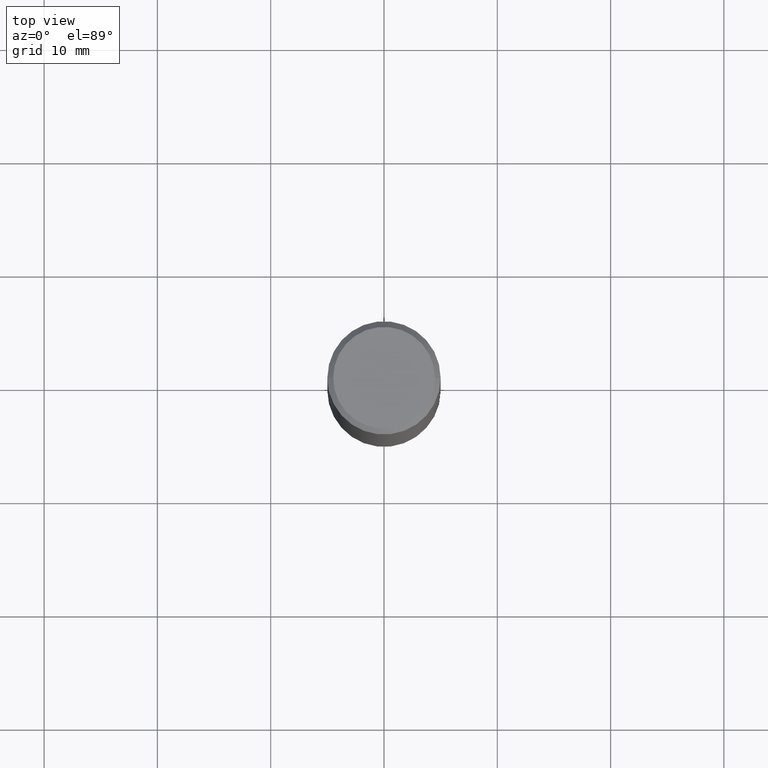
[diagram: clean part render]
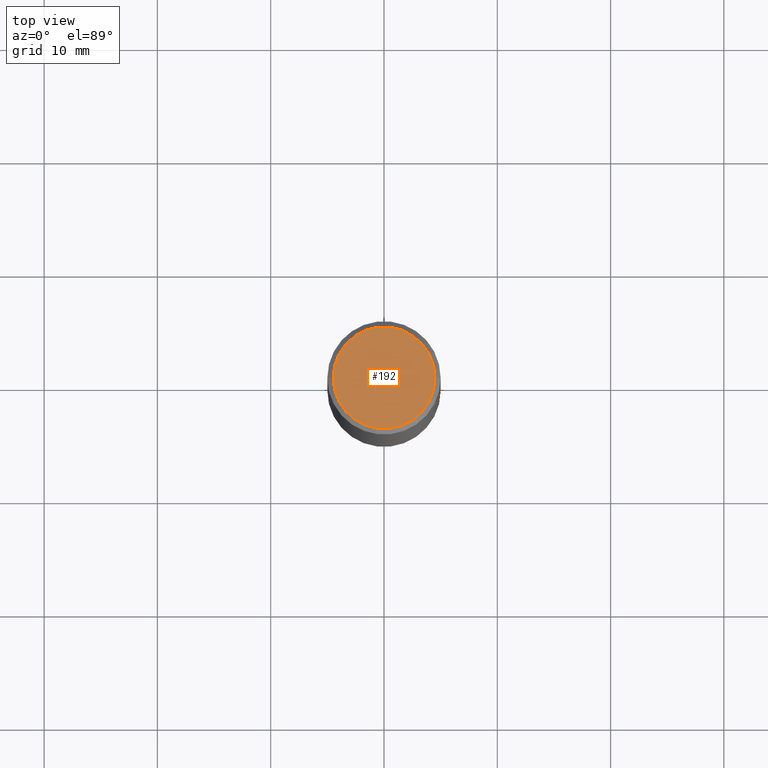
[diagram: same view with one face highlighted and labeled with its STEP entity id]
A machine part, top view. The second image highlights one B-rep face of the part: STEP entity #192.
In plain terms, the highlighted planar face has unit normal (0, -0, -1).
Its self-contained STEP definition (entity closure, byte-faithful):
#21 = ORIENTED_EDGE ( 'NONE', *, *, #236, .T. ) ;
#30 = DIRECTION ( 'NONE',  ( -1.000000000000000000, 6.982962677686265922E-15, -4.876176775795935793E-29 ) ) ;
#48 = CARTESIAN_POINT ( 'NONE',  ( 1.234936949548814617E-15, 0.1768499999999997851, -6.153342185293593634E-16 ) ) ;
#75 = DIRECTION ( 'NONE',  ( -2.445468806185136597E-29, 3.491481338843145583E-15, 1.000000000000000000 ) ) ;
#90 = ORIENTED_EDGE ( 'NONE', *, *, #136, .T. ) ;
#92 = VERTEX_POINT ( 'NONE', #169 ) ;
#97 = EDGE_LOOP ( 'NONE', ( #90, #21 ) ) ;
#105 = CIRCLE ( 'NONE', #297, 0.1768499999999997851 ) ;
#106 = DIRECTION ( 'NONE',  ( 1.000000000000000000, -6.982962677686266711E-15, 4.875932113059884174E-29 ) ) ;
#109 = CARTESIAN_POINT ( 'NONE',  ( -0.1768499999999997851, 1.269851762937246069E-15, 4.268512490091652920E-18 ) ) ;
#120 = PLANE ( 'NONE',  #257 ) ;
#125 = AXIS2_PLACEMENT_3D ( 'NONE', #336, #75, #347 ) ;
#136 = EDGE_CURVE ( 'NONE', #179, #92, #288, .T. ) ;
#169 = CARTESIAN_POINT ( 'NONE',  ( 0.1768499999999997851, -1.316798864272040563E-15, 4.268512490109333727E-18 ) ) ;
#179 = VERTEX_POINT ( 'NONE', #109 ) ;
#192 = ADVANCED_FACE ( 'NONE', ( #343 ), #120, .F. ) ;
#236 = EDGE_CURVE ( 'NONE', #92, #179, #105, .T. ) ;
#257 = AXIS2_PLACEMENT_3D ( 'NONE', #48, #312, #30 ) ;
#279 = CARTESIAN_POINT ( 'NONE',  ( -1.043851414335219820E-46, 1.490343170380447200E-32, 4.268512490100411279E-18 ) ) ;
#288 = CIRCLE ( 'NONE', #125, 0.1768499999999997851 ) ;
#297 = AXIS2_PLACEMENT_3D ( 'NONE', #279, #342, #106 ) ;
#312 = DIRECTION ( 'NONE',  ( 2.438088387897960049E-29, -3.491481338843145188E-15, -1.000000000000000000 ) ) ;
#336 = CARTESIAN_POINT ( 'NONE',  ( -1.043851414335219820E-46, 1.490343170380447200E-32, 4.268512490100411279E-18 ) ) ;
#342 = DIRECTION ( 'NONE',  ( -2.445468806185136597E-29, 3.491481338843145583E-15, 1.000000000000000000 ) ) ;
#343 = FACE_OUTER_BOUND ( 'NONE', #97, .T. ) ;
#347 = DIRECTION ( 'NONE',  ( 1.000000000000000000, -6.982962677686266711E-15, 4.875932113059884174E-29 ) ) ;